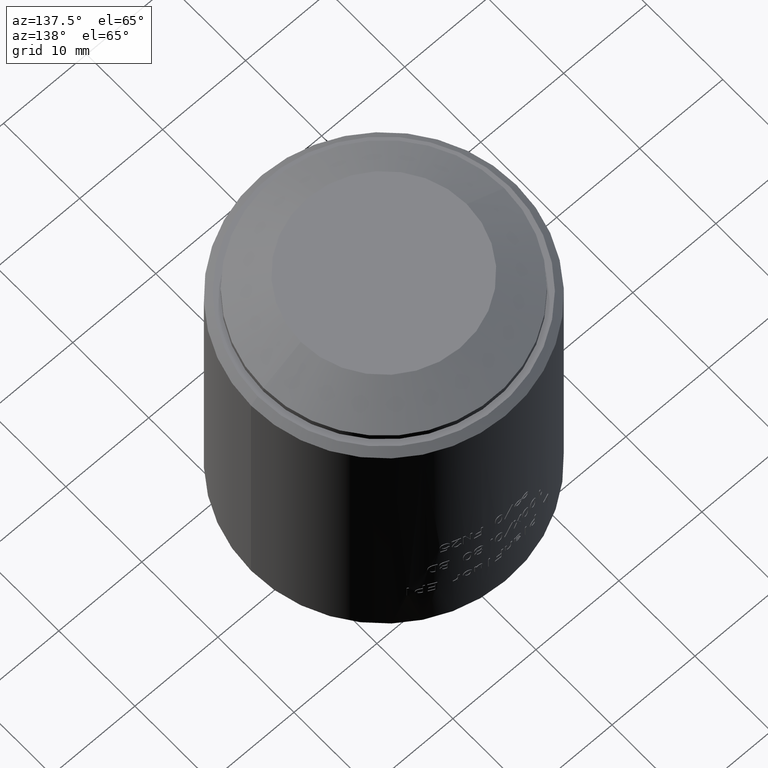
[diagram: clean part render]
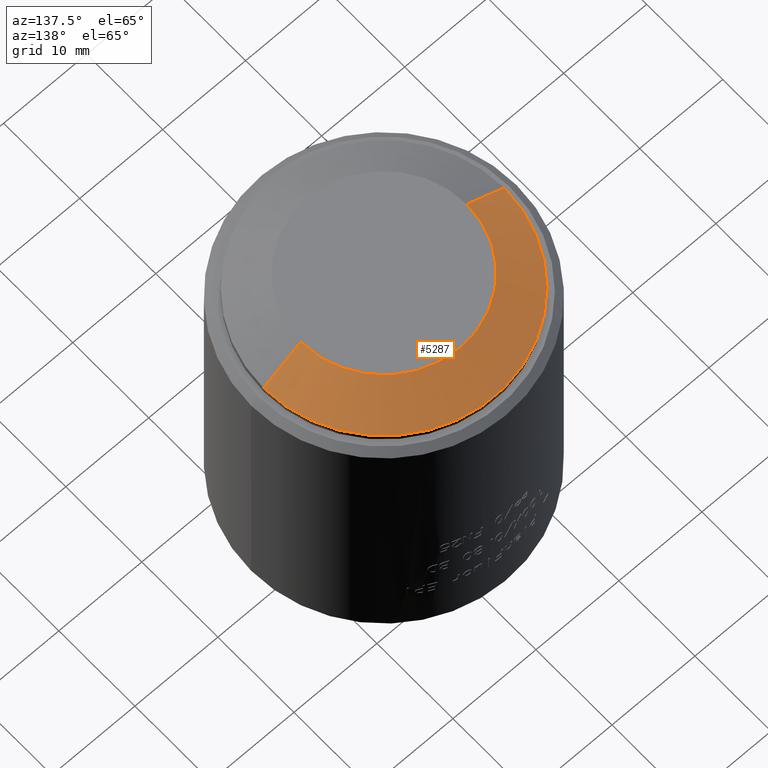
[diagram: same view with one face highlighted and labeled with its STEP entity id]
A machine part, auxiliary view. The second image highlights one B-rep face of the part: STEP entity #5287.
In plain terms, the highlighted conical surface has half-angle 54.999 deg.
Its self-contained STEP definition (entity closure, byte-faithful):
#1086 = CARTESIAN_POINT ( 'NONE',  ( 10.00000000000000000, 1.224646799147353256E-15, 46.60000000000000142 ) ) ;
#1897 = VERTEX_POINT ( 'NONE', #29165 ) ;
#1917 = AXIS2_PLACEMENT_3D ( 'NONE', #14912, #19097, #9915 ) ;
#2432 = VERTEX_POINT ( 'NONE', #10966 ) ;
#3794 = ORIENTED_EDGE ( 'NONE', *, *, #25812, .T. ) ;
#5287 = ADVANCED_FACE ( 'NONE', ( #20145 ), #6109, .T. ) ;
#5288 = VERTEX_POINT ( 'NONE', #24887 ) ;
#5591 = VECTOR ( 'NONE', #20892, 999.9999999999998863 ) ;
#5655 = DIRECTION ( 'NONE',  ( 0.8191463927705987524, 1.003165007939614557E-16, -0.5735845074711449776 ) ) ;
#6109 = CONICAL_SURFACE ( 'NONE', #22178, 10.00000000000000000, 0.9599212355445726486 ) ;
#6616 = AXIS2_PLACEMENT_3D ( 'NONE', #12526, #21564, #16836 ) ;
#7575 = LINE ( 'NONE', #1086, #15581 ) ;
#7978 = EDGE_CURVE ( 'NONE', #5288, #2432, #19386, .T. ) ;
#9915 = DIRECTION ( 'NONE',  ( 1.000000000000000000, 0.000000000000000000, 0.000000000000000000 ) ) ;
#10858 = VERTEX_POINT ( 'NONE', #12011 ) ;
#10966 = CARTESIAN_POINT ( 'NONE',  ( -10.00000000000000000, 0.000000000000000000, 46.60000000000000142 ) ) ;
#11006 = EDGE_LOOP ( 'NONE', ( #24322, #3794, #15710, #16528 ) ) ;
#11572 = LINE ( 'NONE', #18832, #5591 ) ;
#12011 = CARTESIAN_POINT ( 'NONE',  ( -14.50000000000000888, 0.000000000000000000, 43.44899999999999807 ) ) ;
#12526 = CARTESIAN_POINT ( 'NONE',  ( 0.000000000000000000, 0.000000000000000000, 46.60000000000000142 ) ) ;
#13845 = EDGE_CURVE ( 'NONE', #10858, #1897, #22236, .T. ) ;
#14912 = CARTESIAN_POINT ( 'NONE',  ( 0.000000000000000000, 0.000000000000000000, 43.44899999999999807 ) ) ;
#15404 = DIRECTION ( 'NONE',  ( -1.000000000000000000, 0.000000000000000000, 0.000000000000000000 ) ) ;
#15581 = VECTOR ( 'NONE', #5655, 999.9999999999998863 ) ;
#15710 = ORIENTED_EDGE ( 'NONE', *, *, #13845, .F. ) ;
#16528 = ORIENTED_EDGE ( 'NONE', *, *, #28269, .F. ) ;
#16836 = DIRECTION ( 'NONE',  ( 1.000000000000000000, 0.000000000000000000, 0.000000000000000000 ) ) ;
#18832 = CARTESIAN_POINT ( 'NONE',  ( -10.00000000000000000, 0.000000000000000000, 46.60000000000000142 ) ) ;
#19097 = DIRECTION ( 'NONE',  ( 0.000000000000000000, 0.000000000000000000, -1.000000000000000000 ) ) ;
#19386 = CIRCLE ( 'NONE', #6616, 10.00000000000000000 ) ;
#20006 = DIRECTION ( 'NONE',  ( 0.000000000000000000, 0.000000000000000000, -1.000000000000000000 ) ) ;
#20145 = FACE_OUTER_BOUND ( 'NONE', #11006, .T. ) ;
#20892 = DIRECTION ( 'NONE',  ( -0.8191463927705987524, 0.000000000000000000, -0.5735845074711449776 ) ) ;
#21564 = DIRECTION ( 'NONE',  ( 0.000000000000000000, 0.000000000000000000, 1.000000000000000000 ) ) ;
#22178 = AXIS2_PLACEMENT_3D ( 'NONE', #26665, #20006, #15404 ) ;
#22236 = CIRCLE ( 'NONE', #1917, 14.50000000000000000 ) ;
#24322 = ORIENTED_EDGE ( 'NONE', *, *, #7978, .F. ) ;
#24887 = CARTESIAN_POINT ( 'NONE',  ( 10.00000000000000000, 1.500192328955507537E-15, 46.60000000000000142 ) ) ;
#25812 = EDGE_CURVE ( 'NONE', #5288, #1897, #7575, .T. ) ;
#26665 = CARTESIAN_POINT ( 'NONE',  ( 0.000000000000000000, 0.000000000000000000, 46.60000000000000142 ) ) ;
#28269 = EDGE_CURVE ( 'NONE', #2432, #10858, #11572, .T. ) ;
#29165 = CARTESIAN_POINT ( 'NONE',  ( 14.50000000000000888, 1.775737858763663593E-15, 43.44899999999999807 ) ) ;